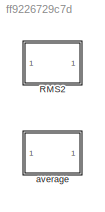
MODEL slx_ff9226729c7d
KIND model
CONFIG AbsTol = auto
CONFIG EnableMultiTasking = off
CONFIG FixedStep = auto
CONFIG MaxStep = auto
CONFIG MinStep = auto
CONFIG RelTol = 1e-3
CONFIG SampleTimeConstraint = Unconstrained
CONFIG SolverName = VariableStepAuto
CONFIG StartTime = 0.0
CONFIG StopTime = 10.0
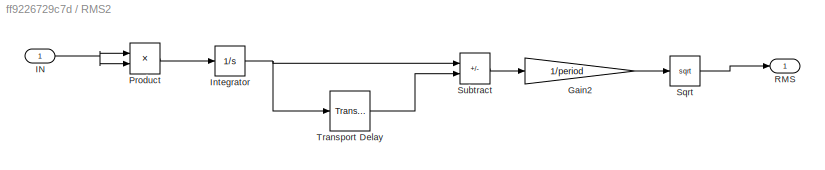
BLOCK [SubSystem] RMS2
BLOCK [Gain] RMS2/Gain2
  Gain = 1/period
BLOCK [Inport] RMS2/IN
BLOCK [Integrator] RMS2/Integrator
BLOCK [Product] RMS2/Product
BLOCK [Outport] RMS2/RMS
BLOCK [Sqrt] RMS2/Sqrt
BLOCK [Sum] RMS2/Subtract
  IconShape = rectangular
  Inputs = +-
BLOCK [TransportDelay] RMS2/Transport Delay
  DelayTime = period
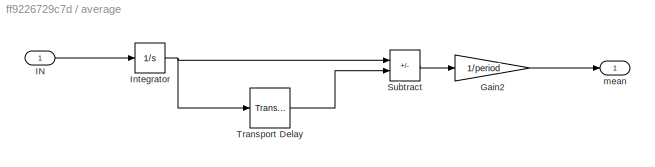
BLOCK [SubSystem] average
BLOCK [Gain] average/Gain2
  Gain = 1/period
BLOCK [Inport] average/IN
BLOCK [Integrator] average/Integrator
BLOCK [Sum] average/Subtract
  IconShape = rectangular
  Inputs = +-
BLOCK [TransportDelay] average/Transport Delay
  DelayTime = period
BLOCK [Outport] average/mean
LINE RMS2/Gain2:1 -> RMS2/Sqrt:1
NET RMS2/IN:1 -> RMS2/Product:1, RMS2/Product:2
NET RMS2/Integrator:1 -> RMS2/Subtract:1, RMS2/Transport Delay:1
LINE RMS2/Product:1 -> RMS2/Integrator:1
LINE RMS2/Sqrt:1 -> RMS2/RMS:1
LINE RMS2/Subtract:1 -> RMS2/Gain2:1
LINE RMS2/Transport Delay:1 -> RMS2/Subtract:2
LINE average/Gain2:1 -> average/mean:1
LINE average/IN:1 -> average/Integrator:1
NET average/Integrator:1 -> average/Subtract:1, average/Transport Delay:1
LINE average/Subtract:1 -> average/Gain2:1
LINE average/Transport Delay:1 -> average/Subtract:2
note: NET lines group one-source signal fan-out (src -> all destinations, sorted); 1:1 wires keep LINE
